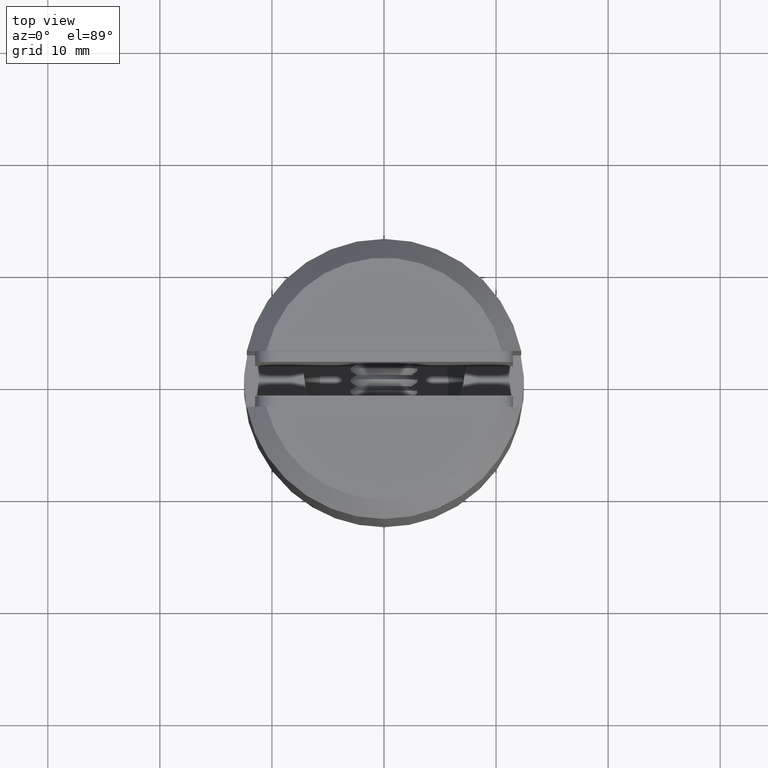
[diagram: clean part render]
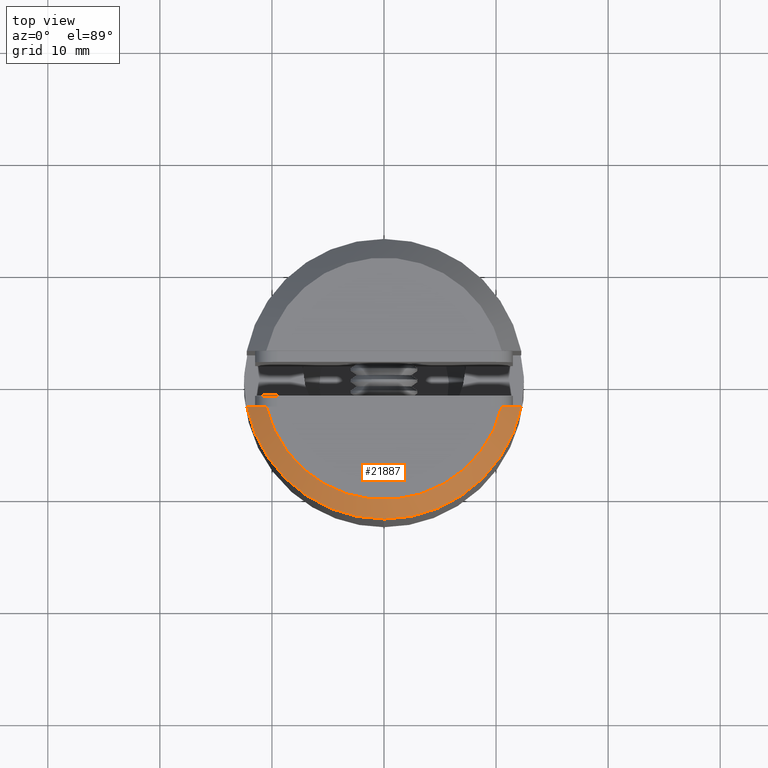
[diagram: same view with one face highlighted and labeled with its STEP entity id]
A machine part, top view. The second image highlights one B-rep face of the part: STEP entity #21887.
In plain terms, the highlighted conical surface has half-angle 45 deg.
Its self-contained STEP definition (entity closure, byte-faithful):
#477 = EDGE_CURVE ( 'NONE', #8567, #14390, #3086, .T. ) ;
#498 = DIRECTION ( 'NONE',  ( 0.000000000000000000, 1.000000000000000000, 0.000000000000000000 ) ) ;
#974 = CARTESIAN_POINT ( 'NONE',  ( -12.24744871391589207, -2.500000000000003997, 37.89999999999999858 ) ) ;
#984 = AXIS2_PLACEMENT_3D ( 'NONE', #10283, #15318, #8851 ) ;
#1043 = CARTESIAN_POINT ( 'NONE',  ( 12.24744871391589207, -2.500000000000003997, 37.89999999999999858 ) ) ;
#1223 = VERTEX_POINT ( 'NONE', #1043 ) ;
#1720 = EDGE_CURVE ( 'NONE', #1223, #8567, #20257, .T. ) ;
#2538 = CARTESIAN_POINT ( 'NONE',  ( -10.50666455160723167, -2.500000000000003997, 39.59999999999999432 ) ) ;
#2575 = ORIENTED_EDGE ( 'NONE', *, *, #477, .F. ) ;
#2610 = CARTESIAN_POINT ( 'NONE',  ( -11.08800938267508762, -2.500000000000003997, 39.03444489547771212 ) ) ;
#2912 = VERTEX_POINT ( 'NONE', #6962 ) ;
#3086 = B_SPLINE_CURVE_WITH_KNOTS ( 'NONE', 3,
 ( #974, #9589, #2610, #2538 ),
 .UNSPECIFIED., .F., .F.,
 ( 4, 4 ),
 ( 1.734723475976807094E-18, 0.002433172722957552270 ),
 .UNSPECIFIED. ) ;
#3700 = ORIENTED_EDGE ( 'NONE', *, *, #1720, .F. ) ;
#5261 = B_SPLINE_CURVE_WITH_KNOTS ( 'NONE', 3,
 ( #5610, #17332, #15773, #15544 ),
 .UNSPECIFIED., .F., .F.,
 ( 4, 4 ),
 ( 0.000000000000000000, 0.002433172722957547499 ),
 .UNSPECIFIED. ) ;
#5318 = AXIS2_PLACEMENT_3D ( 'NONE', #14088, #7023, #498 ) ;
#5610 = CARTESIAN_POINT ( 'NONE',  ( 10.50666455160723878, -2.500000000000003997, 39.59999999999999432 ) ) ;
#6749 = ORIENTED_EDGE ( 'NONE', *, *, #18497, .F. ) ;
#6962 = CARTESIAN_POINT ( 'NONE',  ( 10.50666455160723878, -2.500000000000003997, 39.59999999999999432 ) ) ;
#7023 = DIRECTION ( 'NONE',  ( 0.000000000000000000, 8.839393595184493222E-19, -1.000000000000000000 ) ) ;
#7846 = CARTESIAN_POINT ( 'NONE',  ( 0.000000000000000000, -2.024221133297247584E-17, 37.89999999999999858 ) ) ;
#8567 = VERTEX_POINT ( 'NONE', #13099 ) ;
#8851 = DIRECTION ( 'NONE',  ( -1.000000000000000000, 0.000000000000000000, 0.000000000000000000 ) ) ;
#9589 = CARTESIAN_POINT ( 'NONE',  ( -11.66812187511647636, -2.500000000000003109, 38.46762205974326321 ) ) ;
#10283 = CARTESIAN_POINT ( 'NONE',  ( 0.000000000000000000, -2.174490824415384115E-17, 39.59999999999999432 ) ) ;
#11363 = DIRECTION ( 'NONE',  ( 0.000000000000000000, 8.839393595184493222E-19, -1.000000000000000000 ) ) ;
#11606 = CONICAL_SURFACE ( 'NONE', #5318, 10.80000000000000604, 0.7853981633974467247 ) ;
#11986 = AXIS2_PLACEMENT_3D ( 'NONE', #7846, #11363, #21338 ) ;
#13099 = CARTESIAN_POINT ( 'NONE',  ( -12.24744871391589207, -2.500000000000003997, 37.89999999999999858 ) ) ;
#14088 = CARTESIAN_POINT ( 'NONE',  ( 0.000000000000000000, -2.174490824415384115E-17, 39.59999999999999432 ) ) ;
#14390 = VERTEX_POINT ( 'NONE', #21320 ) ;
#15318 = DIRECTION ( 'NONE',  ( 0.000000000000000000, 0.000000000000000000, 1.000000000000000000 ) ) ;
#15351 = CIRCLE ( 'NONE', #984, 10.80000000000000604 ) ;
#15544 = CARTESIAN_POINT ( 'NONE',  ( 12.24744871391589207, -2.500000000000003997, 37.89999999999999858 ) ) ;
#15761 = EDGE_CURVE ( 'NONE', #14390, #2912, #15351, .T. ) ;
#15773 = CARTESIAN_POINT ( 'NONE',  ( 11.66812187511647636, -2.500000000000003997, 38.46762205974326321 ) ) ;
#17332 = CARTESIAN_POINT ( 'NONE',  ( 11.08800938267508585, -2.500000000000003997, 39.03444489547771212 ) ) ;
#18497 = EDGE_CURVE ( 'NONE', #2912, #1223, #5261, .T. ) ;
#18554 = ORIENTED_EDGE ( 'NONE', *, *, #15761, .F. ) ;
#19026 = EDGE_LOOP ( 'NONE', ( #2575, #3700, #6749, #18554 ) ) ;
#20257 = CIRCLE ( 'NONE', #11986, 12.50000000000000000 ) ;
#20507 = FACE_OUTER_BOUND ( 'NONE', #19026, .T. ) ;
#21320 = CARTESIAN_POINT ( 'NONE',  ( -10.50666455160723167, -2.500000000000003997, 39.59999999999999432 ) ) ;
#21338 = DIRECTION ( 'NONE',  ( 0.000000000000000000, 1.000000000000000000, 0.000000000000000000 ) ) ;
#21887 = ADVANCED_FACE ( 'NONE', ( #20507 ), #11606, .T. ) ;